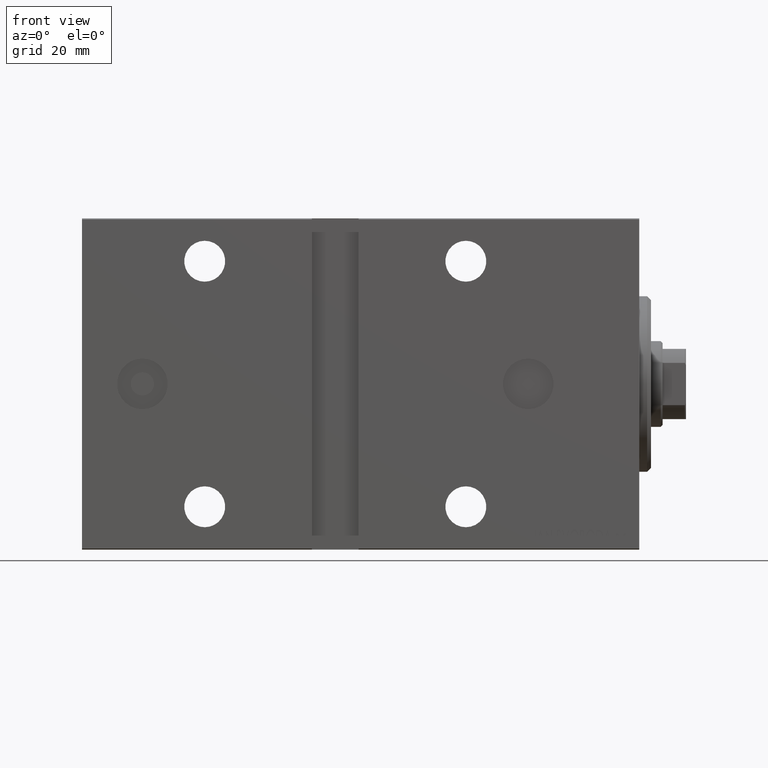
[diagram: clean part render]
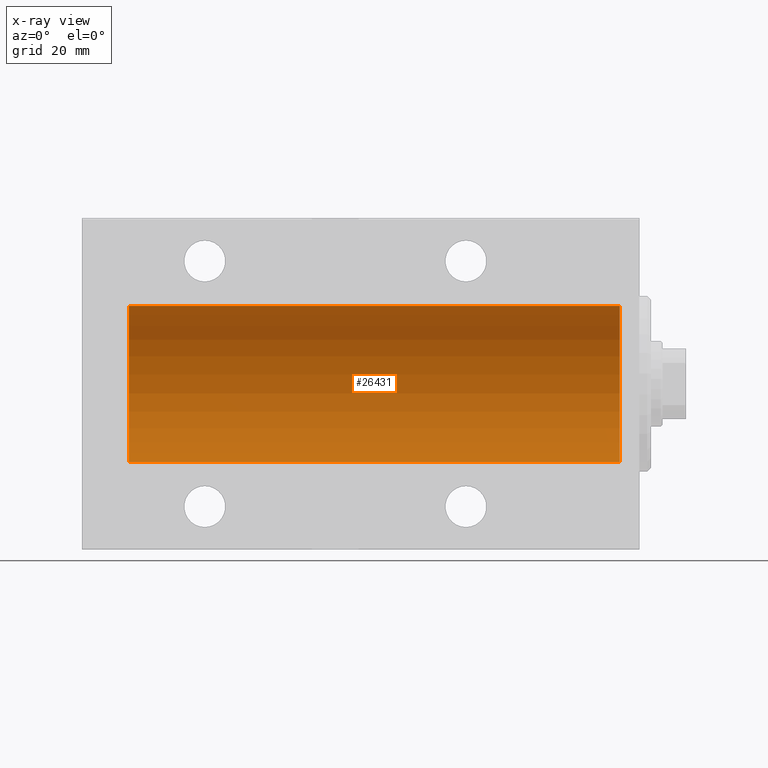
[diagram: x-ray — body ghosted, one internal face saturated and labeled with its STEP entity id]
A machine part, front view, then the same camera in x-ray: the body is ghosted and one INTERNAL B-rep face — a face not visible from any outside direction — is saturated and labeled: STEP entity #26431.
In plain terms, the highlighted cylindrical surface (partial cylindrical patch) has radius 20 mm, axis along (1, 0, -0).
Its self-contained STEP definition (entity closure, byte-faithful):
#512 = CARTESIAN_POINT ( 'NONE',  ( 131.0000000000000000, 0.000000000000000000, 0.000000000000000000 ) ) ;
#936 = AXIS2_PLACEMENT_3D ( 'NONE', #42866, #13376, #36561 ) ;
#1785 = DIRECTION ( 'NONE',  ( -1.000000000000000000, -0.000000000000000000, -0.000000000000000000 ) ) ;
#3137 = DIRECTION ( 'NONE',  ( 0.000000000000000000, 0.000000000000000000, 1.000000000000000000 ) ) ;
#6523 = EDGE_CURVE ( 'NONE', #38489, #27714, #21729, .T. ) ;
#7415 = CARTESIAN_POINT ( 'NONE',  ( 5.000000000000004441, 0.000000000000000000, 20.00000000000000000 ) ) ;
#10671 = CARTESIAN_POINT ( 'NONE',  ( 131.0000000000000000, 0.000000000000000000, 20.00000000000000000 ) ) ;
#11829 = VECTOR ( 'NONE', #1785, 1000.000000000000000 ) ;
#13178 = DIRECTION ( 'NONE',  ( -1.000000000000000000, 0.000000000000000000, 0.000000000000000000 ) ) ;
#13329 = DIRECTION ( 'NONE',  ( -1.000000000000000000, -0.000000000000000000, -0.000000000000000000 ) ) ;
#13376 = DIRECTION ( 'NONE',  ( -1.000000000000000000, 0.000000000000000000, 0.000000000000000000 ) ) ;
#14377 = VECTOR ( 'NONE', #23873, 1000.000000000000000 ) ;
#19926 = EDGE_LOOP ( 'NONE', ( #34417, #35182, #41809, #40191 ) ) ;
#20311 = AXIS2_PLACEMENT_3D ( 'NONE', #512, #13329, #3137 ) ;
#20418 = LINE ( 'NONE', #10671, #14377 ) ;
#20805 = VERTEX_POINT ( 'NONE', #7415 ) ;
#21729 = LINE ( 'NONE', #40822, #11829 ) ;
#22363 = CIRCLE ( 'NONE', #30649, 20.00000000000000000 ) ;
#23087 = EDGE_CURVE ( 'NONE', #38489, #32094, #22363, .T. ) ;
#23873 = DIRECTION ( 'NONE',  ( -1.000000000000000000, -0.000000000000000000, -0.000000000000000000 ) ) ;
#26210 = EDGE_CURVE ( 'NONE', #27714, #20805, #41131, .T. ) ;
#26317 = CYLINDRICAL_SURFACE ( 'NONE', #20311, 20.00000000000000000 ) ;
#26431 = ADVANCED_FACE ( 'NONE', ( #29582 ), #26317, .F. ) ;
#27110 = CARTESIAN_POINT ( 'NONE',  ( 5.000000000000004441, 2.449293598294706513E-15, -20.00000000000000000 ) ) ;
#27580 = CARTESIAN_POINT ( 'NONE',  ( 131.0000000000000000, 0.000000000000000000, 20.00000000000000000 ) ) ;
#27714 = VERTEX_POINT ( 'NONE', #27110 ) ;
#29077 = CARTESIAN_POINT ( 'NONE',  ( 131.0000000000000000, 2.449293598294706513E-15, -20.00000000000000000 ) ) ;
#29582 = FACE_OUTER_BOUND ( 'NONE', #19926, .T. ) ;
#30649 = AXIS2_PLACEMENT_3D ( 'NONE', #40049, #13178, #36792 ) ;
#32094 = VERTEX_POINT ( 'NONE', #27580 ) ;
#34417 = ORIENTED_EDGE ( 'NONE', *, *, #23087, .F. ) ;
#35182 = ORIENTED_EDGE ( 'NONE', *, *, #6523, .T. ) ;
#36561 = DIRECTION ( 'NONE',  ( 0.000000000000000000, 0.000000000000000000, 1.000000000000000000 ) ) ;
#36792 = DIRECTION ( 'NONE',  ( 0.000000000000000000, 0.000000000000000000, 1.000000000000000000 ) ) ;
#38489 = VERTEX_POINT ( 'NONE', #29077 ) ;
#40049 = CARTESIAN_POINT ( 'NONE',  ( 131.0000000000000000, 0.000000000000000000, 0.000000000000000000 ) ) ;
#40191 = ORIENTED_EDGE ( 'NONE', *, *, #42578, .F. ) ;
#40822 = CARTESIAN_POINT ( 'NONE',  ( 131.0000000000000000, 2.449293598294706513E-15, -20.00000000000000000 ) ) ;
#41131 = CIRCLE ( 'NONE', #936, 20.00000000000000000 ) ;
#41809 = ORIENTED_EDGE ( 'NONE', *, *, #26210, .T. ) ;
#42578 = EDGE_CURVE ( 'NONE', #32094, #20805, #20418, .T. ) ;
#42866 = CARTESIAN_POINT ( 'NONE',  ( 5.000000000000004441, 0.000000000000000000, 0.000000000000000000 ) ) ;